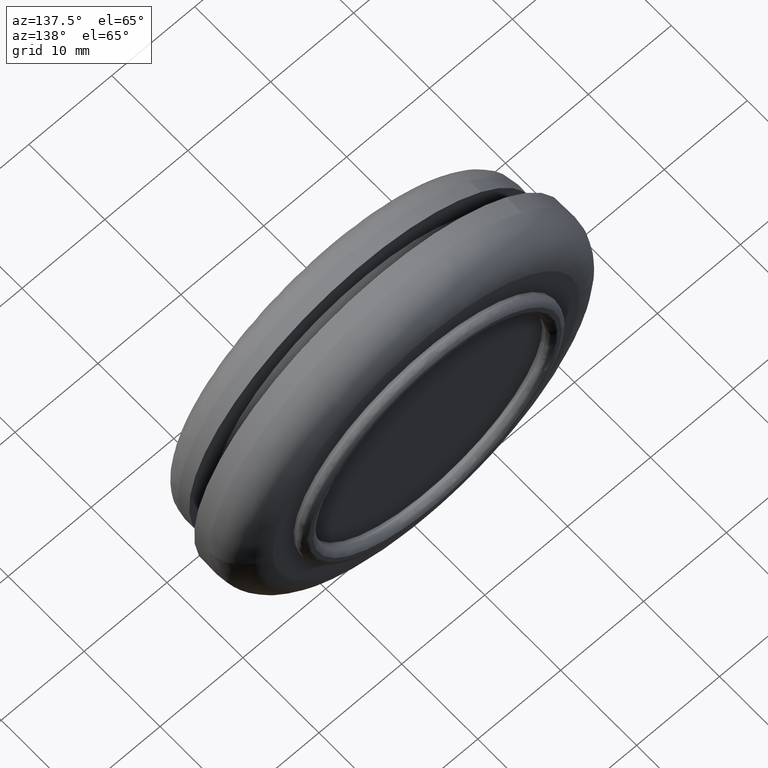
[diagram: clean part render]
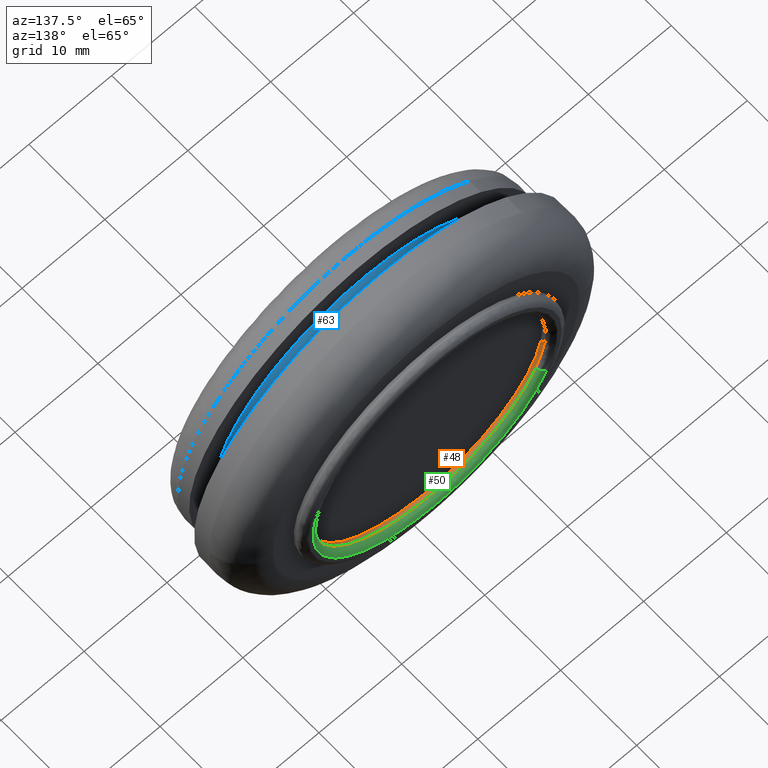
[diagram: same view with three faces highlighted in distinct colors, each labeled with its STEP entity id]
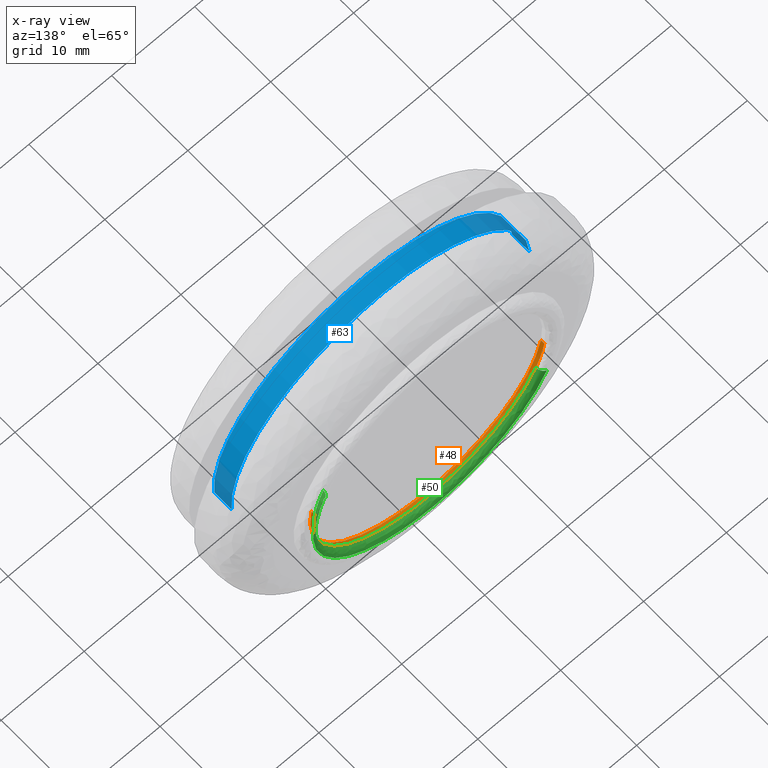
[diagram: x-ray of the same camera — body ghosted, the three highlighted faces saturated]
A machine part, auxiliary view with three faces highlighted in distinct colors.
The next image is the same camera in x-ray (body ghosted, the three faces saturated) — at least one of them is partly hidden behind the body in this view.
Their STEP definitions:

[orange] entity #48 — the highlighted cylindrical surface (partial cylindrical patch) has radius 14 mm, axis along (-0, 1, 0).
#48=ADVANCED_FACE('',(#153),#152,.F.);
#152=CYLINDRICAL_SURFACE('',#390,1.40000000000E+001);
#153=FACE_OUTER_BOUND('',#391,.T.);
#387=CARTESIAN_POINT('',(-3.06888306880E-016,1.27612500000E+001,1.60934839920E-015));
#388=DIRECTION('',(-2.88385143743E-017,1.00000000000E+000,1.92963005359E-016));
#389=DIRECTION('',(-9.89015863362E-001,-6.16297582204E-033,-1.47809411130E-001));
#390=AXIS2_PLACEMENT_3D('',#387,#388,#389);
#391=EDGE_LOOP('',(#691,#692,#693,#694,#695,#696,#697));
#691=ORIENTED_EDGE('',*,*,#846,.F.);
#692=ORIENTED_EDGE('',*,*,#847,.F.);
#693=ORIENTED_EDGE('',*,*,#848,.F.);
#694=ORIENTED_EDGE('',*,*,#849,.F.);
#695=ORIENTED_EDGE('',*,*,#840,.F.);
#696=ORIENTED_EDGE('',*,*,#806,.T.);
#697=ORIENTED_EDGE('',*,*,#845,.T.);
#806=EDGE_CURVE('',#884,#885,#886,.T.);
#840=EDGE_CURVE('',#884,#1122,#1123,.T.);
#845=EDGE_CURVE('',#885,#1150,#1157,.T.);
#846=EDGE_CURVE('',#1163,#1150,#1164,.T.);
#847=EDGE_CURVE('',#1170,#1163,#1171,.T.);
#848=EDGE_CURVE('',#1177,#1170,#1178,.T.);
#849=EDGE_CURVE('',#1122,#1177,#1184,.T.);
#884=VERTEX_POINT('',#1410);
#885=VERTEX_POINT('',#1411);
#886=CIRCLE('',#1415,1.40000000000E+001);
#1122=VERTEX_POINT('',#1619);
#1123=(BOUNDED_CURVE() B_SPLINE_CURVE(1,(#1620,#1621),.UNSPECIFIED.,.F.,.F.) B_SPLINE_CURVE_WITH_KNOTS((2,2),(8.33332538610E-002,9.16666666064E-001),.UNSPECIFIED.) CURVE() GEOMETRIC_REPRESENTATION_ITEM() RATIONAL_B_SPLINE_CURVE((1.00000000000E+000,1.00000000000E+000)) REPRESENTATION_ITEM('') );
#1150=VERTEX_POINT('',#1637);
#1157=(BOUNDED_CURVE() B_SPLINE_CURVE(1,(#1642,#1643),.UNSPECIFIED.,.F.,.F.) B_SPLINE_CURVE_WITH_KNOTS((2,2),(8.33333333333E-002,9.16666666547E-001),.UNSPECIFIED.) CURVE() GEOMETRIC_REPRESENTATION_ITEM() RATIONAL_B_SPLINE_CURVE((7.50000000000E-001,7.50000000000E-001)) REPRESENTATION_ITEM('') );
#1163=VERTEX_POINT('',#1644);
#1164=CIRCLE('',#1648,1.40000000000E+001);
#1170=VERTEX_POINT('',#1649);
#1171=CIRCLE('',#1653,1.40000000000E+001);
#1177=VERTEX_POINT('',#1654);
#1178=CIRCLE('',#1658,1.40000000000E+001);
#1184=CIRCLE('',#1662,1.40000000000E+001);
#1410=CARTESIAN_POINT('',(-1.38462220871E+001,1.23000000000E+001,-2.06933175570E+000));
#1411=CARTESIAN_POINT('',(1.38462224713E+001,1.23000000000E+001,2.06932918474E+000));
#1412=CARTESIAN_POINT('',(-3.81916720471E-014,1.23000000000E+001,-3.26849658450E-013));
#1413=DIRECTION('',(-1.32613801938E-017,-1.00000000000E+000,8.87340795244E-017));
#1414=DIRECTION('',(9.89015890808E-001,4.06557698256E-030,1.47809227481E-001));
#1415=AXIS2_PLACEMENT_3D('',#1412,#1413,#1414);
#1619=CARTESIAN_POINT('',(-1.38462220871E+001,1.27499999999E+001,-2.06933175581E+000));
#1620=CARTESIAN_POINT('',(-1.38462220871E+001,1.22999999571E+001,-2.06933175581E+000));
#1621=CARTESIAN_POINT('',(-1.38462220871E+001,1.27499999997E+001,-2.06933175581E+000));
#1637=CARTESIAN_POINT('',(1.38466607749E+001,1.27499999999E+001,2.06639429548E+000));
#1642=CARTESIAN_POINT('',(1.38462220871E+001,1.23000000000E+001,2.06933175581E+000));
#1643=CARTESIAN_POINT('',(1.38462220871E+001,1.27499999999E+001,2.06933175581E+000));
#1644=CARTESIAN_POINT('',(5.64069009999E+000,1.27499999999E+001,-1.28133764167E+001));
#1645=CARTESIAN_POINT('',(-3.78364006792E-012,1.27499999999E+001,1.34097177806E-011));
#1646=DIRECTION('',(-9.79181463412E-013,-1.00000000000E+000,4.68655598383E-012));
#1647=DIRECTION('',(-9.89016080995E-001,2.75715958001E-013,-1.47807954907E-001));
#1648=AXIS2_PLACEMENT_3D('',#1645,#1646,#1647);
#1649=CARTESIAN_POINT('',(0.00000000000E+000,1.27500000000E+001,-1.40000000000E+001));
#1650=CARTESIAN_POINT('',(1.06581410364E-014,1.27499999999E+001,-1.01252339846E-013));
#1651=DIRECTION('',(-2.23115970151E-011,-1.00000000000E+000,-4.70024019705E-012));
#1652=DIRECTION('',(7.61295788314E-016,-4.70024019705E-012,1.00000000000E+000));
#1653=AXIS2_PLACEMENT_3D('',#1650,#1651,#1652);
#1654=CARTESIAN_POINT('',(-1.28126337525E+001,1.27499999999E+001,-5.64237683276E+000));
#1655=CARTESIAN_POINT('',(-3.83693077310E-013,1.27499999999E+001,1.44781964195E-011));
#1656=DIRECTION('',(9.80802770339E-013,-1.00000000000E+000,-4.70319850873E-012));
#1657=DIRECTION('',(4.02906435714E-001,4.69973266653E-012,-9.15241172621E-001));
#1658=AXIS2_PLACEMENT_3D('',#1655,#1656,#1657);
#1659=CARTESIAN_POINT('',(-3.83693077310E-013,1.27499999999E+001,1.44781964195E-011));
#1660=DIRECTION('',(9.80802770339E-013,-1.00000000000E+000,-4.70319850873E-012));
#1661=DIRECTION('',(4.02906435714E-001,4.69973266653E-012,-9.15241172621E-001));
#1662=AXIS2_PLACEMENT_3D('',#1659,#1660,#1661);

[blue] entity #63 — the highlighted cylindrical surface (partial cylindrical patch) has radius 18 mm, axis along (0, 1, 0).
#63=ADVANCED_FACE('',(#303),#302,.T.);
#302=CYLINDRICAL_SURFACE('',#633,1.80000000000E+001);
#303=FACE_OUTER_BOUND('',#634,.T.);
#630=CARTESIAN_POINT('',(2.39850372093E-018,6.35750000000E+000,-5.15896323116E-016));
#631=DIRECTION('',(1.98515684427E-018,1.00000000000E+000,3.24570275012E-017));
#632=DIRECTION('',(-9.98134798422E-001,-0.00000000000E+000,6.10485395349E-002));
#633=AXIS2_PLACEMENT_3D('',#630,#631,#632);
#634=EDGE_LOOP('',(#785,#786,#787,#788));
#785=ORIENTED_EDGE('',*,*,#832,.T.);
#786=ORIENTED_EDGE('',*,*,#880,.F.);
#787=ORIENTED_EDGE('',*,*,#838,.F.);
#788=ORIENTED_EDGE('',*,*,#881,.T.);
#832=EDGE_CURVE('',#1067,#1059,#1068,.T.);
#838=EDGE_CURVE('',#1102,#1109,#1110,.T.);
#880=EDGE_CURVE('',#1109,#1059,#1386,.T.);
#881=EDGE_CURVE('',#1102,#1067,#1392,.T.);
#1059=VERTEX_POINT('',#1574);
#1067=VERTEX_POINT('',#1580);
#1068=CIRCLE('',#1584,1.80000000000E+001);
#1102=VERTEX_POINT('',#1605);
#1109=VERTEX_POINT('',#1610);
#1110=CIRCLE('',#1614,1.80000000000E+001);
#1386=(BOUNDED_CURVE() B_SPLINE_CURVE(1,(#1786,#1787),.UNSPECIFIED.,.F.,.F.) B_SPLINE_CURVE_WITH_KNOTS((2,2),(8.33333233997E-002,9.16666663280E-001),.UNSPECIFIED.) CURVE() GEOMETRIC_REPRESENTATION_ITEM() RATIONAL_B_SPLINE_CURVE((1.00000000000E+000,1.00000000000E+000)) REPRESENTATION_ITEM('') );
#1392=(BOUNDED_CURVE() B_SPLINE_CURVE(1,(#1788,#1789),.UNSPECIFIED.,.F.,.F.) B_SPLINE_CURVE_WITH_KNOTS((2,2),(8.33333333334E-002,9.16666666667E-001),.UNSPECIFIED.) CURVE() GEOMETRIC_REPRESENTATION_ITEM() RATIONAL_B_SPLINE_CURVE((7.50000000000E-001,7.50000000000E-001)) REPRESENTATION_ITEM('') );
#1574=CARTESIAN_POINT('',(-1.79664263721E+001,6.30000000000E+000,1.09887370377E+000));
#1580=CARTESIAN_POINT('',(1.79662659972E+001,6.30000000000E+000,-1.10149267681E+000));
#1581=CARTESIAN_POINT('',(6.62581101096E-013,6.30000000000E+000,3.07132097532E-012));
#1582=DIRECTION('',(0.00000000000E+000,-1.00000000000E+000,0.00000000000E+000));
#1583=DIRECTION('',(-3.69087476631E-014,-0.00000000000E+000,-1.00000000000E+000));
#1584=AXIS2_PLACEMENT_3D('',#1581,#1582,#1583);
#1605=CARTESIAN_POINT('',(1.79662659972E+001,4.00000000000E+000,-1.10149267681E+000));
#1610=CARTESIAN_POINT('',(-1.79664263721E+001,4.00000000000E+000,1.09887370377E+000));
#1611=CARTESIAN_POINT('',(-3.89022147829E-013,4.00000000000E+000,3.06243919113E-012));
#1612=DIRECTION('',(8.26989981713E-015,-1.00000000000E+000,-7.04260210096E-015));
#1613=DIRECTION('',(2.22460938559E-014,7.04260210096E-015,-1.00000000000E+000));
#1614=AXIS2_PLACEMENT_3D('',#1611,#1612,#1613);
#1786=CARTESIAN_POINT('',(-1.79664263716E+001,3.99999997258E+000,1.09887371163E+000));
#1787=CARTESIAN_POINT('',(-1.79664263716E+001,6.29999999065E+000,1.09887371163E+000));
#1788=CARTESIAN_POINT('',(1.79664263716E+001,4.00000000000E+000,-1.09887371163E+000));
#1789=CARTESIAN_POINT('',(1.79664263716E+001,6.30000000000E+000,-1.09887371163E+000));

[green] entity #50 — the highlighted face is a freeform B-spline surface patch.
#50=ADVANCED_FACE('',(#173),#172,.T.);
#172=( BOUNDED_SURFACE() B_SPLINE_SURFACE( 2,2,((#418,#419,#420,#421,#422),(#423,#424,#425,#426,#427),(#428,#429,#430,#431,#432),(#433,#434,#435,#436,#437),(#438,#439,#440,#441,#442)), .UNSPECIFIED.,.F.,.F.,.F.) B_SPLINE_SURFACE_WITH_KNOTS((3,2,3),(3,2,3),(0.00000000000E+000,5.00000000000E-001,1.00000000000E+000),(0.00000000000E+000,5.00000000000E-001,1.00000000000E+000), .UNSPECIFIED. ) GEOMETRIC_REPRESENTATION_ITEM() RATIONAL_B_SPLINE_SURFACE(((1.00000000000E+000,7.07106781156E-001,1.00000000000E+000,7.07106781156E-001,1.00000000000E+000),(7.07106781187E-001,4.99999999978E-001,7.07106781187E-001,4.99999999978E-001,7.07106781187E-001),(1.00000000000E+000,7.07106781156E-001,1.00000000000E+000,7.07106781156E-001,1.00000000000E+000),(7.07106781187E-001,4.99999999978E-001,7.07106781187E-001,4.99999999978E-001,7.07106781187E-001),(1.00000000000E+000,7.07106781156E-001,1.00000000000E+000,7.07106781156E-001,1.00000000000E+000))) REPRESENTATION_ITEM('') SURFACE() );
#173=FACE_OUTER_BOUND('',#443,.T.);
#418=CARTESIAN_POINT('',(-1.28133764167E+001,1.27499999999E+001,-5.64069009999E+000));
#419=CARTESIAN_POINT('',(-1.28133764166E+001,1.34999999999E+001,-5.64069009994E+000));
#420=CARTESIAN_POINT('',(-1.34998072961E+001,1.35000000000E+001,-5.94286992675E+000));
#421=CARTESIAN_POINT('',(-1.41862381756E+001,1.35000000001E+001,-6.24504975356E+000));
#422=CARTESIAN_POINT('',(-1.41862381756E+001,1.27500000000E+001,-6.24504975356E+000));
#423=CARTESIAN_POINT('',(-7.17268631670E+000,1.27499999999E+001,-1.84540665167E+001));
#424=CARTESIAN_POINT('',(-7.17268631663E+000,1.34999999999E+001,-1.84540665165E+001));
#425=CARTESIAN_POINT('',(-7.55693736935E+000,1.35000000000E+001,-1.94426772228E+001));
#426=CARTESIAN_POINT('',(-7.94118842206E+000,1.35000000001E+001,-2.04312879292E+001));
#427=CARTESIAN_POINT('',(-7.94118842206E+000,1.27500000000E+001,-2.04312879292E+001));
#428=CARTESIAN_POINT('',(5.64069009999E+000,1.27499999999E+001,-1.28133764167E+001));
#429=CARTESIAN_POINT('',(5.64069009994E+000,1.34999999999E+001,-1.28133764166E+001));
#430=CARTESIAN_POINT('',(5.94286992675E+000,1.35000000000E+001,-1.34998072961E+001));
#431=CARTESIAN_POINT('',(6.24504975356E+000,1.35000000001E+001,-1.41862381756E+001));
#432=CARTESIAN_POINT('',(6.24504975356E+000,1.27500000000E+001,-1.41862381756E+001));
#433=CARTESIAN_POINT('',(1.84540665167E+001,1.27499999999E+001,-7.17268631670E+000));
#434=CARTESIAN_POINT('',(1.84540665165E+001,1.34999999999E+001,-7.17268631663E+000));
#435=CARTESIAN_POINT('',(1.94426772228E+001,1.35000000000E+001,-7.55693736935E+000));
#436=CARTESIAN_POINT('',(2.04312879292E+001,1.35000000001E+001,-7.94118842206E+000));
#437=CARTESIAN_POINT('',(2.04312879292E+001,1.27500000000E+001,-7.94118842206E+000));
#438=CARTESIAN_POINT('',(1.28133764167E+001,1.27499999999E+001,5.64069009999E+000));
#439=CARTESIAN_POINT('',(1.28133764166E+001,1.34999999999E+001,5.64069009994E+000));
#440=CARTESIAN_POINT('',(1.34998072961E+001,1.35000000000E+001,5.94286992675E+000));
#441=CARTESIAN_POINT('',(1.41862381756E+001,1.35000000001E+001,6.24504975356E+000));
#442=CARTESIAN_POINT('',(1.41862381756E+001,1.27500000000E+001,6.24504975356E+000));
#443=EDGE_LOOP('',(#707,#708,#709,#710,#711,#712,#713,#714,#715));
#707=ORIENTED_EDGE('',*,*,#848,.T.);
#708=ORIENTED_EDGE('',*,*,#847,.T.);
#709=ORIENTED_EDGE('',*,*,#846,.T.);
#710=ORIENTED_EDGE('',*,*,#844,.T.);
#711=ORIENTED_EDGE('',*,*,#850,.T.);
#712=ORIENTED_EDGE('',*,*,#811,.F.);
#713=ORIENTED_EDGE('',*,*,#810,.F.);
#714=ORIENTED_EDGE('',*,*,#815,.F.);
#715=ORIENTED_EDGE('',*,*,#851,.F.);
#810=EDGE_CURVE('',#912,#913,#914,.T.);
#811=EDGE_CURVE('',#913,#920,#921,.T.);
#815=EDGE_CURVE('',#941,#912,#948,.T.);
#844=EDGE_CURVE('',#1150,#1143,#1151,.T.);
#846=EDGE_CURVE('',#1163,#1150,#1164,.T.);
#847=EDGE_CURVE('',#1170,#1163,#1171,.T.);
#848=EDGE_CURVE('',#1177,#1170,#1178,.T.);
#850=EDGE_CURVE('',#1143,#920,#1190,.T.);
#851=EDGE_CURVE('',#1177,#941,#1196,.T.);
#912=VERTEX_POINT('',#1430);
#913=VERTEX_POINT('',#1431);
#914=CIRCLE('',#1435,1.47499999999E+001);
#920=VERTEX_POINT('',#1436);
#921=(BOUNDED_CURVE() B_SPLINE_CURVE(3,(#1437,#1438,#1439,#1440,#1441,#1442,#1443,#1444,#1445,#1446,#1447,#1448,#1449,#1450,#1451,#1452),.UNSPECIFIED.,.F.,.F.) B_SPLINE_CURVE_WITH_KNOTS((4,1,1,1,1,1,1,1,1,1,1,1,1,4),(7.72108070000E-008,2.98521436303E+000,4.63493994814E+000,7.07025702137E+000,8.87709177439E+000,1.09196291818E+001,1.31192462182E+001,1.46904390339E+001,1.64972655688E+001,1.75970142070E+001,1.94038662748E+001,2.05036880059E+001,2.23105607455E+001,2.31692749947E+001),.UNSPECIFIED.) CURVE() GEOMETRIC_REPRESENTATION_ITEM() RATIONAL_B_SPLINE_CURVE((1.00000000000E+000,1.00000000000E+000,1.00000000000E+000,1.00000000000E+000,1.00000000000E+000,1.00000000000E+000,1.00000000000E+000,1.00000000000E+000,1.00000000000E+000,1.00000000000E+000,1.00000000000E+000,1.00000000000E+000,1.00000000000E+000,1.00000000000E+000,1.00000000000E+000,1.00000000000E+000)) REPRESENTATION_ITEM('') );
#941=VERTEX_POINT('',#1471);
#948=(BOUNDED_CURVE() B_SPLINE_CURVE(3,(#1488,#1489,#1490,#1491,#1492,#1493,#1494,#1495,#1496,#1497,#1498),.UNSPECIFIED.,.F.,.F.) B_SPLINE_CURVE_WITH_KNOTS((4,1,1,1,1,1,1,1,4),(2.31692725672E+001,2.34889138436E+001,2.58456750986E+001,2.85952283444E+001,2.97736073167E+001,3.22874754041E+001,3.49584688460E+001,3.69224430582E+001,4.02218582823E+001),.UNSPECIFIED.) CURVE() GEOMETRIC_REPRESENTATION_ITEM() RATIONAL_B_SPLINE_CURVE((1.00000000000E+000,1.00000000000E+000,1.00000000000E+000,1.00000000000E+000,1.00000000000E+000,1.00000000000E+000,1.00000000000E+000,1.00000000000E+000,1.00000000000E+000,1.00000000000E+000,1.00000000000E+000)) REPRESENTATION_ITEM('') );
#1143=VERTEX_POINT('',#1632);
#1150=VERTEX_POINT('',#1637);
#1151=CIRCLE('',#1641,1.40000000000E+001);
#1163=VERTEX_POINT('',#1644);
#1164=CIRCLE('',#1648,1.40000000000E+001);
#1170=VERTEX_POINT('',#1649);
#1171=CIRCLE('',#1653,1.40000000000E+001);
#1177=VERTEX_POINT('',#1654);
#1178=CIRCLE('',#1658,1.40000000000E+001);
#1190=(BOUNDED_CURVE() B_SPLINE_CURVE(2,(#1663,#1664,#1665),.UNSPECIFIED.,.F.,.F.) B_SPLINE_CURVE_WITH_KNOTS((3,3),(0.00000000000E+000,4.99990324178E-001),.UNSPECIFIED.) CURVE() GEOMETRIC_REPRESENTATION_ITEM() RATIONAL_B_SPLINE_CURVE((1.00000000000E+000,7.07106781156E-001,1.00000000000E+000)) REPRESENTATION_ITEM('') );
#1196=(BOUNDED_CURVE() B_SPLINE_CURVE(2,(#1666,#1667,#1668),.UNSPECIFIED.,.F.,.F.) B_SPLINE_CURVE_WITH_KNOTS((3,3),(0.00000000000E+000,4.99997262725E-001),.UNSPECIFIED.) CURVE() GEOMETRIC_REPRESENTATION_ITEM() RATIONAL_B_SPLINE_CURVE((7.50000000000E-001,5.30331288460E-001,7.49997594826E-001)) REPRESENTATION_ITEM('') );
#1430=CARTESIAN_POINT('',(0.00000000000E+000,1.35000000000E+001,-1.47500000000E+001));
#1431=CARTESIAN_POINT('',(5.94286992675E+000,1.35000000000E+001,-1.34998072961E+001));
#1432=CARTESIAN_POINT('',(-1.97587723960E-010,1.35000000000E+001,-8.74678107721E-011));
#1433=DIRECTION('',(0.00000000000E+000,-1.00000000000E+000,0.00000000000E+000));
#1434=DIRECTION('',(-1.33957778957E-011,-0.00000000000E+000,1.00000000000E+000));
#1435=AXIS2_PLACEMENT_3D('',#1432,#1433,#1434);
#1436=CARTESIAN_POINT('',(1.34997885311E+001,1.35000000000E+001,5.94286166605E+000));
#1437=CARTESIAN_POINT('',(5.94286992675E+000,1.35000000000E+001,-1.34998072961E+001));
#1438=CARTESIAN_POINT('',(6.85367532631E+000,1.35000000000E+001,-1.30990180867E+001));
#1439=CARTESIAN_POINT('',(8.20431864741E+000,1.35000000000E+001,-1.23327455642E+001));
#1440=CARTESIAN_POINT('',(1.00501130578E+001,1.35000000000E+001,-1.08614213946E+001));
#1441=CARTESIAN_POINT('',(1.14067554356E+001,1.35000000000E+001,-9.43209429589E+000));
#1442=CARTESIAN_POINT('',(1.26185595341E+001,1.35000000000E+001,-7.71843413392E+000));
#1443=CARTESIAN_POINT('',(1.35609301914E+001,1.35000000000E+001,-5.93040363296E+000));
#1444=CARTESIAN_POINT('',(1.42111857651E+001,1.35000000000E+001,-4.09926059071E+000));
#1445=CARTESIAN_POINT('',(1.46054881097E+001,1.35000000000E+001,-2.27963970022E+000));
#1446=CARTESIAN_POINT('',(1.47531345882E+001,1.35000000000E+001,-7.91560129396E-001));
#1447=CARTESIAN_POINT('',(1.47537157940E+001,1.35000000000E+001,7.80675635155E-001));
#1448=CARTESIAN_POINT('',(1.46225940952E+001,1.35000000000E+001,2.11221141652E+000));
#1449=CARTESIAN_POINT('',(1.43153201330E+001,1.35000000000E+001,3.65416808216E+000));
#1450=CARTESIAN_POINT('',(1.39494903112E+001,1.35000000000E+001,4.85727216235E+000));
#1451=CARTESIAN_POINT('',(1.36151226093E+001,1.35000000000E+001,5.68088830029E+000));
#1452=CARTESIAN_POINT('',(1.34997885311E+001,1.35000000000E+001,5.94286166605E+000));
#1471=CARTESIAN_POINT('',(-1.34998106424E+001,1.35000000000E+001,-5.94287177298E+000));
#1488=CARTESIAN_POINT('',(-1.34998106424E+001,1.35000000000E+001,-5.94287177298E+000));
#1489=CARTESIAN_POINT('',(-1.34568846450E+001,1.35000000000E+001,-6.04038895875E+000));
#1490=CARTESIAN_POINT('',(-1.30886082202E+001,1.35000000000E+001,-6.85301800256E+000));
#1491=CARTESIAN_POINT('',(-1.21930059861E+001,1.35000000000E+001,-8.43101925747E+000));
#1492=CARTESIAN_POINT('',(-1.08547768020E+001,1.35000000000E+001,-1.00545770869E+001));
#1493=CARTESIAN_POINT('',(-9.27987687912E+000,1.35000000000E+001,-1.15167196861E+001));
#1494=CARTESIAN_POINT('',(-7.55123606453E+000,1.35000000000E+001,-1.27591126606E+001));
#1495=CARTESIAN_POINT('',(-5.39396977195E+000,1.35000000000E+001,-1.37941650052E+001));
#1496=CARTESIAN_POINT('',(-2.85418084155E+000,1.35000000000E+001,-1.45528056091E+001));
#1497=CARTESIAN_POINT('',(-1.09982541026E+000,1.35000000000E+001,-1.47502258156E+001));
#1498=CARTESIAN_POINT('',(0.00000000000E+000,1.35000000000E+001,-1.47500000000E+001));
#1632=CARTESIAN_POINT('',(1.28133764167E+001,1.27499999999E+001,5.64069009999E+000));
#1637=CARTESIAN_POINT('',(1.38466607749E+001,1.27499999999E+001,2.06639429548E+000));
#1638=CARTESIAN_POINT('',(-3.78364006792E-012,1.27499999999E+001,1.34097177806E-011));
#1639=DIRECTION('',(-9.79181463412E-013,-1.00000000000E+000,4.68655598383E-012));
#1640=DIRECTION('',(-9.89016080995E-001,2.75715958001E-013,-1.47807954907E-001));
#1641=AXIS2_PLACEMENT_3D('',#1638,#1639,#1640);
#1644=CARTESIAN_POINT('',(5.64069009999E+000,1.27499999999E+001,-1.28133764167E+001));
#1645=CARTESIAN_POINT('',(-3.78364006792E-012,1.27499999999E+001,1.34097177806E-011));
#1646=DIRECTION('',(-9.79181463412E-013,-1.00000000000E+000,4.68655598383E-012));
#1647=DIRECTION('',(-9.89016080995E-001,2.75715958001E-013,-1.47807954907E-001));
#1648=AXIS2_PLACEMENT_3D('',#1645,#1646,#1647);
#1649=CARTESIAN_POINT('',(0.00000000000E+000,1.27500000000E+001,-1.40000000000E+001));
#1650=CARTESIAN_POINT('',(1.06581410364E-014,1.27499999999E+001,-1.01252339846E-013));
#1651=DIRECTION('',(-2.23115970151E-011,-1.00000000000E+000,-4.70024019705E-012));
#1652=DIRECTION('',(7.61295788314E-016,-4.70024019705E-012,1.00000000000E+000));
#1653=AXIS2_PLACEMENT_3D('',#1650,#1651,#1652);
#1654=CARTESIAN_POINT('',(-1.28126337525E+001,1.27499999999E+001,-5.64237683276E+000));
#1655=CARTESIAN_POINT('',(-3.83693077310E-013,1.27499999999E+001,1.44781964195E-011));
#1656=DIRECTION('',(9.80802770339E-013,-1.00000000000E+000,-4.70319850873E-012));
#1657=DIRECTION('',(4.02906435714E-001,4.69973266653E-012,-9.15241172621E-001));
#1658=AXIS2_PLACEMENT_3D('',#1655,#1656,#1657);
#1663=CARTESIAN_POINT('',(1.28133764167E+001,1.27499999999E+001,5.64069009999E+000));
#1664=CARTESIAN_POINT('',(1.28133764166E+001,1.34999999999E+001,5.64069009994E+000));
#1665=CARTESIAN_POINT('',(1.34998072961E+001,1.35000000000E+001,5.94286992675E+000));
#1666=CARTESIAN_POINT('',(-1.28133764167E+001,1.27499999999E+001,-5.64069009999E+000));
#1667=CARTESIAN_POINT('',(-1.28133764166E+001,1.34999941933E+001,-5.64069009994E+000));
#1668=CARTESIAN_POINT('',(-1.34998019816E+001,1.35000000000E+001,-5.94286758722E+000));